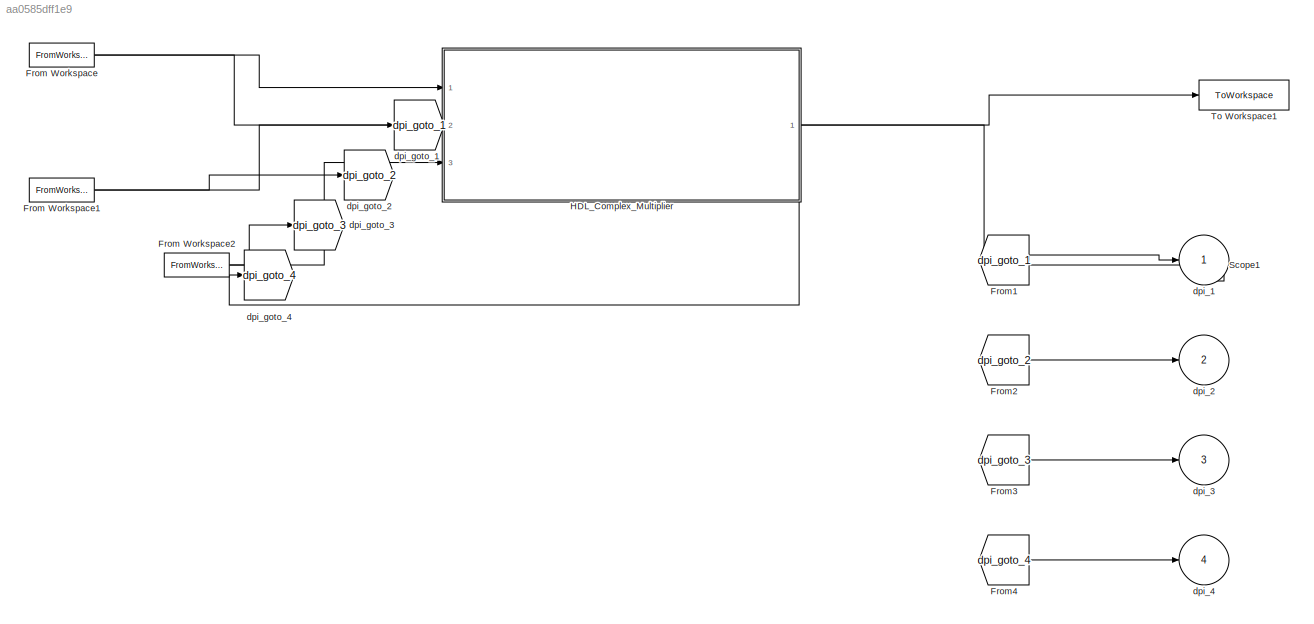
MODEL slx_aa0585dff1e9
KIND model
CONFIG AbsTol = auto
CONFIG EnableMultiTasking = off
CONFIG FixedStep = auto
CONFIG MaxStep = auto
CONFIG MinStep = auto
CONFIG RelTol = 1e-3
CONFIG SampleTimeConstraint = Unconstrained
CONFIG SolverName = VariableStepAuto
CONFIG StartTime = 0.0
CONFIG StopTime = 10.0
BLOCK [FromWorkspace] From Workspace
  Interpolate = off
  OutputAfterFinalValue = Setting to zero
  SampleTime = sample_time
  VariableName = data1
BLOCK [FromWorkspace] From Workspace1
  Interpolate = off
  OutputAfterFinalValue = Setting to zero
  SampleTime = sample_time
  VariableName = data2
BLOCK [FromWorkspace] From Workspace2
  Interpolate = off
  OutputAfterFinalValue = Setting to zero
  SampleTime = sample_time
  VariableName = data3
BLOCK [From] From1
  GotoTag = dpi_goto_1
  TagVisibility = global
BLOCK [From] From2
  GotoTag = dpi_goto_2
  TagVisibility = global
BLOCK [From] From3
  GotoTag = dpi_goto_3
  TagVisibility = global
BLOCK [From] From4
  GotoTag = dpi_goto_4
  TagVisibility = global
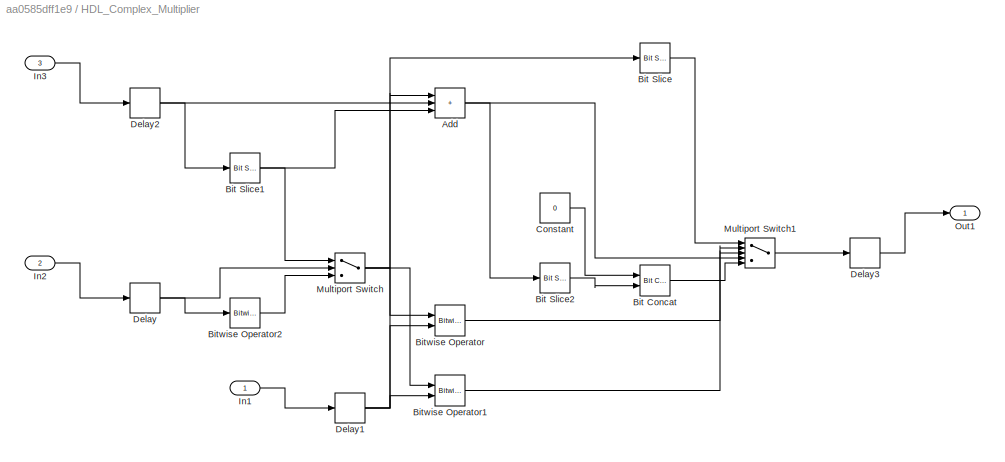
BLOCK [SubSystem] HDL_Complex_Multiplier
  Ports = [3, 1]
  RequestExecContextInheritance = off
BLOCK [Sum] HDL_Complex_Multiplier/Add
  AccumDataTypeStr = fixdt(1, 65, 0)
  IconShape = rectangular
  Inputs = +++
  OutDataTypeStr = fixdt(1, 64, 0)
  Ports = [3, 1]
  SampleTime = 5e-08
BLOCK [Reference] HDL_Complex_Multiplier/Bit Concat  REF=hdlsllib/Logic and Bit
Operations/Bit Concat
  Ports = [2, 1]
  SourceBlock = hdlsllib/Logic and Bit\nOperations/Bit Concat
  SourceProductBaseCode = SL
  SourceType = Bit Concat
BLOCK [Reference] HDL_Complex_Multiplier/Bit Slice  REF=hdlsllib/Logic and Bit
Operations/Bit Slice
  Ports = [1, 1]
  SourceBlock = hdlsllib/Logic and Bit\nOperations/Bit Slice
  SourceProductBaseCode = SL
  SourceType = Bit Slice
BLOCK [Reference] HDL_Complex_Multiplier/Bit Slice1  REF=hdlsllib/Logic and Bit
Operations/Bit Slice
  Ports = [1, 1]
  SourceBlock = hdlsllib/Logic and Bit\nOperations/Bit Slice
  SourceProductBaseCode = SL
  SourceType = Bit Slice
BLOCK [Reference] HDL_Complex_Multiplier/Bit Slice2  REF=hdlsllib/Logic and Bit
Operations/Bit Slice
  Ports = [1, 1]
  SourceBlock = hdlsllib/Logic and Bit\nOperations/Bit Slice
  SourceProductBaseCode = SL
  SourceType = Bit Slice
BLOCK [Reference] HDL_Complex_Multiplier/Bitwise Operator  REF=simulink/Logic and Bit
Operations/Bitwise
Operator
  Ports = [2, 1]
  SourceBlock = simulink/Logic and Bit\nOperations/Bitwise\nOperator
  SourceProductBaseCode = SL
  SourceType = Bitwise Operator
BLOCK [Reference] HDL_Complex_Multiplier/Bitwise Operator1  REF=simulink/Logic and Bit
Operations/Bitwise
Operator
  Ports = [2, 1]
  SourceBlock = simulink/Logic and Bit\nOperations/Bitwise\nOperator
  SourceProductBaseCode = SL
  SourceType = Bitwise Operator
BLOCK [Reference] HDL_Complex_Multiplier/Bitwise Operator2  REF=simulink/Logic and Bit
Operations/Bitwise
Operator
  Ports = [1, 1]
  SourceBlock = simulink/Logic and Bit\nOperations/Bitwise\nOperator
  SourceProductBaseCode = SL
  SourceType = Bitwise Operator
BLOCK [Constant] HDL_Complex_Multiplier/Constant
  OutDataTypeStr = fixdt(0, 64, 0)
  Value = 0
BLOCK [Delay] HDL_Complex_Multiplier/Delay
  DelayLength = double(1)
  InitialCondition = 0
  InputPortMap = u0
  Ports = [1, 1]
  SampleTime = 5e-08
BLOCK [Delay] HDL_Complex_Multiplier/Delay1
  DelayLength = double(1)
  InitialCondition = 0
  InputPortMap = u0
  Ports = [1, 1]
  SampleTime = 5e-08
BLOCK [Delay] HDL_Complex_Multiplier/Delay2
  DelayLength = double(1)
  InitialCondition = 0
  InputPortMap = u0
  Ports = [1, 1]
  SampleTime = 5e-08
BLOCK [Delay] HDL_Complex_Multiplier/Delay3
  DelayLength = double(1)
  InitialCondition = 0
  InputPortMap = u0
  Ports = [1, 1]
  SampleTime = 5e-08
BLOCK [Inport] HDL_Complex_Multiplier/In1
  OutDataTypeStr = fixdt(1, 64, 0)
  PortDimensions = 1
  SampleTime = 5e-08
BLOCK [Inport] HDL_Complex_Multiplier/In2
  OutDataTypeStr = fixdt(1, 64, 0)
  Port = 2
  PortDimensions = 1
  SampleTime = 5e-08
BLOCK [Inport] HDL_Complex_Multiplier/In3
  OutDataTypeStr = fixdt(0, 3, 0)
  Port = 3
  PortDimensions = 1
  SampleTime = 5e-08
BLOCK [MultiPortSwitch] HDL_Complex_Multiplier/Multiport Switch
  DataPortOrder = Zero-based contiguous
  DiagnosticForDefault = None
  InputSameDT = off
  Inputs = 2
  OutDataTypeStr = fixdt(1, 64, 0)
  Ports = [3, 1]
  SampleTime = 5e-08
  SaturateOnIntegerOverflow = off
  zeroidx = on
BLOCK [MultiPortSwitch] HDL_Complex_Multiplier/Multiport Switch1
  DataPortOrder = Zero-based contiguous
  DiagnosticForDefault = None
  InputSameDT = off
  Inputs = 4
  OutDataTypeStr = fixdt(1, 64, 0)
  Ports = [5, 1]
  SampleTime = 5e-08
  SaturateOnIntegerOverflow = off
  zeroidx = on
BLOCK [Outport] HDL_Complex_Multiplier/Out1
BLOCK [Scope] Scope1
  Floating = off
  NumInputPorts = 1
  Ports = [1]
  ScopeSpecificationString = Simulink.scopes.TimeScopeBlockCfg('CurrentConfiguration', extmgr.ConfigurationSet(extmgr.Configuration('Core','General UI',true),extmgr.Configuration('Core','Source UI',true),extmgr.Configuration('Sources','WiredSimulink',true,'DataLoggingVariableName','ScopeData1'),extmgr.Configuration('Visuals','Time Domain',true,'SerializedDisplays',{struct('MinYLimReal','-120.75','MaxYLimReal','226.75','YLabel...<+1432ch>
BLOCK [ToWorkspace] To Workspace1
  FixptAsFi = on
  MaxDataPoints = inf
  Ports = [1]
  SampleTime = -1
  SaveFormat = Structure With Time
  VariableName = hw_out
BLOCK [Outport] dpi_1
BLOCK [Outport] dpi_2
  Port = 2
BLOCK [Outport] dpi_3
  Port = 3
BLOCK [Outport] dpi_4
  Port = 4
BLOCK [Goto] dpi_goto_1
  GotoTag = dpi_goto_1
  TagVisibility = global
BLOCK [Goto] dpi_goto_2
  GotoTag = dpi_goto_2
  TagVisibility = global
BLOCK [Goto] dpi_goto_3
  GotoTag = dpi_goto_3
  TagVisibility = global
BLOCK [Goto] dpi_goto_4
  GotoTag = dpi_goto_4
  TagVisibility = global
NET From Workspace1:1 -> HDL_Complex_Multiplier:2, dpi_goto_2:1
NET From Workspace2:1 -> HDL_Complex_Multiplier:3, dpi_goto_3:1
NET From Workspace:1 -> HDL_Complex_Multiplier:1, dpi_goto_1:1
LINE From1:1 -> dpi_1:1
LINE From2:1 -> dpi_2:1
LINE From3:1 -> dpi_3:1
LINE From4:1 -> dpi_4:1
NET HDL_Complex_Multiplier/Add:1 -> HDL_Complex_Multiplier/Bit Slice2:1, HDL_Complex_Multiplier/Multiport Switch1:4
LINE HDL_Complex_Multiplier/Bit Concat:1 -> HDL_Complex_Multiplier/Multiport Switch1:5
NET HDL_Complex_Multiplier/Bit Slice1:1 -> HDL_Complex_Multiplier/Add:3, HDL_Complex_Multiplier/Multiport Switch:1
LINE HDL_Complex_Multiplier/Bit Slice2:1 -> HDL_Complex_Multiplier/Bit Concat:2
LINE HDL_Complex_Multiplier/Bit Slice:1 -> HDL_Complex_Multiplier/Multiport Switch1:1
LINE HDL_Complex_Multiplier/Bitwise Operator1:1 -> HDL_Complex_Multiplier/Multiport Switch1:3
LINE HDL_Complex_Multiplier/Bitwise Operator2:1 -> HDL_Complex_Multiplier/Multiport Switch:3
LINE HDL_Complex_Multiplier/Bitwise Operator:1 -> HDL_Complex_Multiplier/Multiport Switch1:2
LINE HDL_Complex_Multiplier/Constant:1 -> HDL_Complex_Multiplier/Bit Concat:1
NET HDL_Complex_Multiplier/Delay1:1 -> HDL_Complex_Multiplier/Add:2, HDL_Complex_Multiplier/Bitwise Operator1:2, HDL_Complex_Multiplier/Bitwise Operator:2
NET HDL_Complex_Multiplier/Delay2:1 -> HDL_Complex_Multiplier/Bit Slice1:1, HDL_Complex_Multiplier/Bit Slice:1
LINE HDL_Complex_Multiplier/Delay3:1 -> HDL_Complex_Multiplier/Out1:1
NET HDL_Complex_Multiplier/Delay:1 -> HDL_Complex_Multiplier/Bitwise Operator2:1, HDL_Complex_Multiplier/Multiport Switch:2
LINE HDL_Complex_Multiplier/In1:1 -> HDL_Complex_Multiplier/Delay1:1
LINE HDL_Complex_Multiplier/In2:1 -> HDL_Complex_Multiplier/Delay:1
LINE HDL_Complex_Multiplier/In3:1 -> HDL_Complex_Multiplier/Delay2:1
LINE HDL_Complex_Multiplier/Multiport Switch1:1 -> HDL_Complex_Multiplier/Delay3:1
NET HDL_Complex_Multiplier/Multiport Switch:1 -> HDL_Complex_Multiplier/Add:1, HDL_Complex_Multiplier/Bitwise Operator1:1, HDL_Complex_Multiplier/Bitwise Operator:1
NET HDL_Complex_Multiplier:1 -> Scope1:1, To Workspace1:1, dpi_goto_4:1
note: NET lines group one-source signal fan-out (src -> all destinations, sorted); 1:1 wires keep LINE
